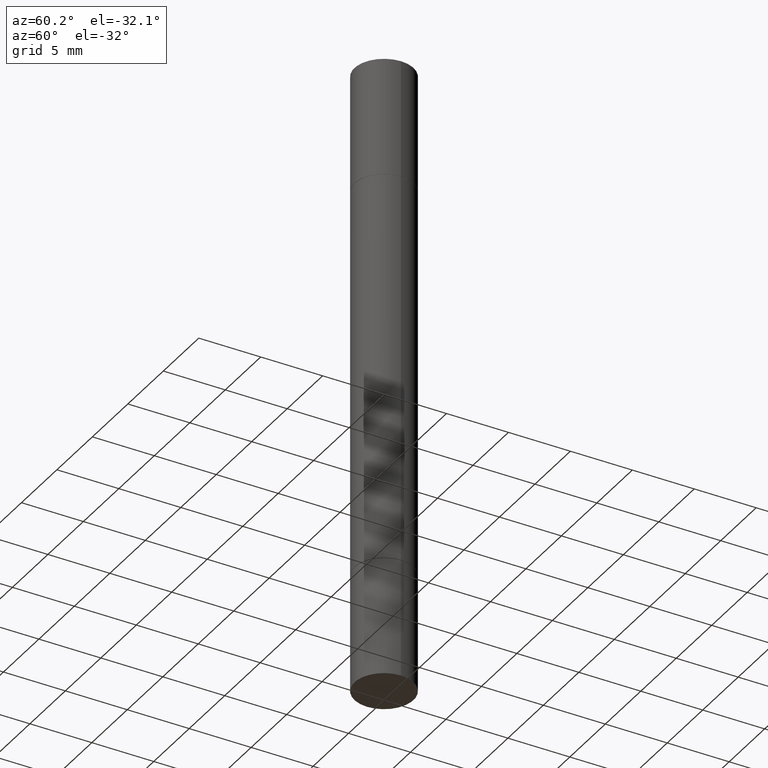
[diagram: clean part render]
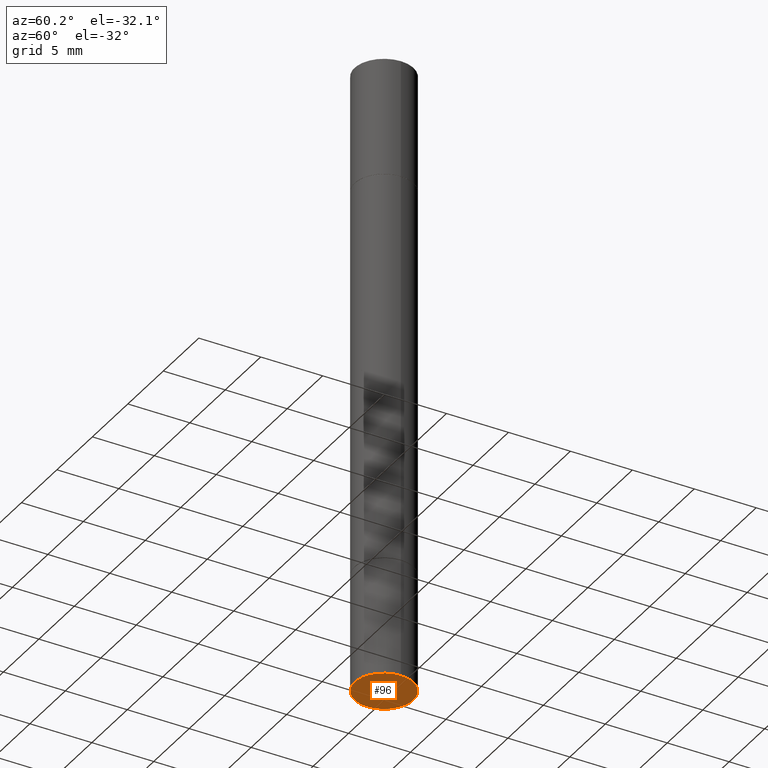
[diagram: same view with one face highlighted and labeled with its STEP entity id]
A machine part, auxiliary view. The second image highlights one B-rep face of the part: STEP entity #96.
In plain terms, the highlighted planar face has unit normal (0, -0, -1).
Its self-contained STEP definition (entity closure, byte-faithful):
#1 = AXIS2_PLACEMENT_3D ( 'NONE', #356, #513, #463 ) ;
#11 = EDGE_CURVE ( 'NONE', #182, #301, #95, .T. ) ;
#37 = DIRECTION ( 'NONE',  ( 1.000000000000000000, -6.982962677686261189E-15, 0.000000000000000000 ) ) ;
#72 = ORIENTED_EDGE ( 'NONE', *, *, #11, .F. ) ;
#95 = CIRCLE ( 'NONE', #1, 0.09375000000000001388 ) ;
#96 = ADVANCED_FACE ( 'NONE', ( #436 ), #486, .T. ) ;
#178 = DIRECTION ( 'NONE',  ( 2.438088387897960049E-29, -3.491481338843145188E-15, -1.000000000000000000 ) ) ;
#182 = VERTEX_POINT ( 'NONE', #533 ) ;
#200 = CARTESIAN_POINT ( 'NONE',  ( 0.09375000000000001388, -7.637615428719378669E-15, -2.000000000000000000 ) ) ;
#254 = CARTESIAN_POINT ( 'NONE',  ( 4.890937612370273194E-29, -6.982962677686291165E-15, -2.000000000000000000 ) ) ;
#298 = EDGE_CURVE ( 'NONE', #301, #182, #417, .T. ) ;
#301 = VERTEX_POINT ( 'NONE', #200 ) ;
#356 = CARTESIAN_POINT ( 'NONE',  ( 4.890937612370273194E-29, -6.982962677686291165E-15, -2.000000000000000000 ) ) ;
#381 = AXIS2_PLACEMENT_3D ( 'NONE', #591, #178, #389 ) ;
#389 = DIRECTION ( 'NONE',  ( -1.000000000000000000, 6.982962677686265922E-15, -4.876176775795935793E-29 ) ) ;
#397 = ORIENTED_EDGE ( 'NONE', *, *, #298, .F. ) ;
#417 = CIRCLE ( 'NONE', #504, 0.09375000000000001388 ) ;
#436 = FACE_OUTER_BOUND ( 'NONE', #646, .T. ) ;
#458 = DIRECTION ( 'NONE',  ( -2.445468806185136597E-29, 3.491481338843145583E-15, 1.000000000000000000 ) ) ;
#463 = DIRECTION ( 'NONE',  ( 1.000000000000000000, -6.982962677686261189E-15, 0.000000000000000000 ) ) ;
#486 = PLANE ( 'NONE',  #381 ) ;
#504 = AXIS2_PLACEMENT_3D ( 'NONE', #254, #458, #37 ) ;
#513 = DIRECTION ( 'NONE',  ( -2.445468806185136597E-29, 3.491481338843145583E-15, 1.000000000000000000 ) ) ;
#533 = CARTESIAN_POINT ( 'NONE',  ( -0.09375000000000001388, -5.662176111878106581E-15, -2.000000000000000000 ) ) ;
#591 = CARTESIAN_POINT ( 'NONE',  ( 6.546527510331364135E-16, 0.09374999999999301947, -2.000000000000000444 ) ) ;
#646 = EDGE_LOOP ( 'NONE', ( #397, #72 ) ) ;